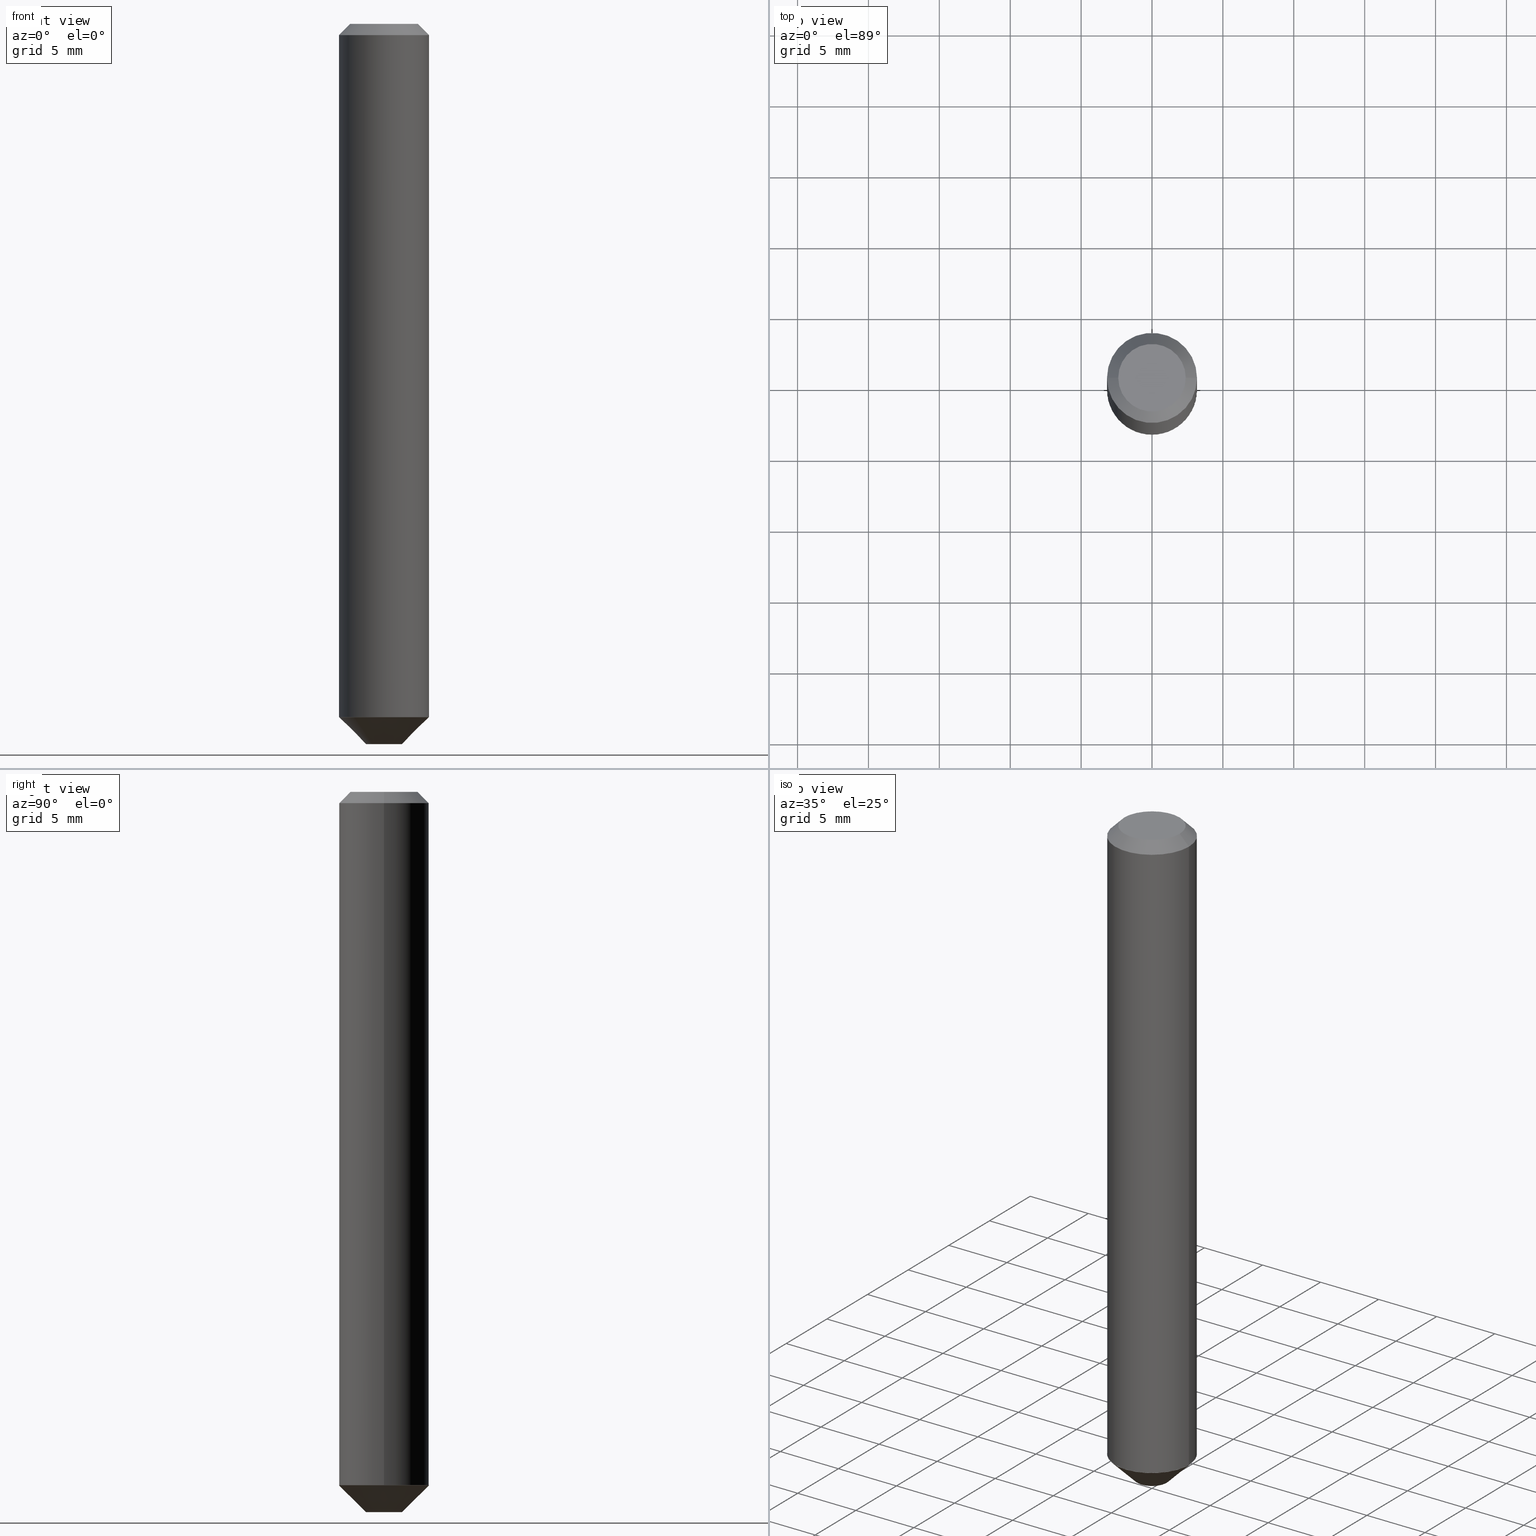
[diagram: canonical four-view strip — front | top / right | iso, engineering-drawing reading convention]
A machine part, canonical four-view strip (front | top / right | iso — engineering-drawing reading convention). The complete STEP part file that produces these views, byte-faithful:
ISO-10303-21;
HEADER;
FILE_DESCRIPTION (( 'STEP AP203' ),
    '1' );
FILE_NAME ('74231.STEP',
    '2025-06-20T12:14:37',
    ( '' ),
    ( '' ),
    'SwSTEP 2.0',
    'SolidWorks 2024',
    '' );
FILE_SCHEMA (( 'CONFIG_CONTROL_DESIGN' ));
ENDSEC;

DATA;
#1 = EDGE_LOOP ( 'NONE', ( #317, #189, #384, #183 ) ) ;
#2 = EDGE_LOOP ( 'NONE', ( #297, #347 ) ) ;
#3 = ORIENTED_EDGE ( 'NONE', *, *, #272, .T. ) ;
#4 = LINE ( 'NONE', #76, #169 ) ;
#5 = APPROVAL_ROLE ( '' ) ;
#6 = DIRECTION ( 'NONE',  ( -6.982962677686265922E-15, -1.000000000000000000, 3.499856470251552244E-15 ) ) ;
#7 = DIRECTION ( 'NONE',  ( -0.7071067811866923458, 7.493145998870876386E-15, 0.7071067811864025776 ) ) ;
#8 = FACE_OUTER_BOUND ( 'NONE', #159, .T. ) ;
#9 = AXIS2_PLACEMENT_3D ( 'NONE', #256, #299, #188 ) ;
#10 = ORIENTED_EDGE ( 'NONE', *, *, #202, .F. ) ;
#11 = VERTEX_POINT ( 'NONE', #14 ) ;
#12 = APPROVAL_DATE_TIME ( #107, #357 ) ;
#13 = DIRECTION ( 'NONE',  ( -2.445468806185136597E-29, 3.491481338843145583E-15, 1.000000000000000000 ) ) ;
#14 = CARTESIAN_POINT ( 'NONE',  ( 0.1250000000000000000, -9.819791265496324395E-16, -0.03125000000000021511 ) ) ;
#15 = CALENDAR_DATE ( 2025, 20, 6 ) ;
#16 = VECTOR ( 'NONE', #103, 39.37007874015748143 ) ;
#17 = APPROVAL_PERSON_ORGANIZATION ( #34, #147, #5 ) ;
#18 = COORDINATED_UNIVERSAL_TIME_OFFSET ( 5, 0, .BEHIND. ) ;
#19 = CC_DESIGN_PERSON_AND_ORGANIZATION_ASSIGNMENT ( #214, #177, ( #58 ) ) ;
#20 = AXIS2_PLACEMENT_3D ( 'NONE', #172, #309, #207 ) ;
#21 = MECHANICAL_CONTEXT ( 'NONE', #144, 'mechanical' ) ;
#22 = APPROVAL_ROLE ( '' ) ;
#23 = ORIENTED_EDGE ( 'NONE', *, *, #272, .F. ) ;
#24 = AXIS2_PLACEMENT_3D ( 'NONE', #311, #406, #280 ) ;
#25 = SECURITY_CLASSIFICATION ( '', '', #336 ) ;
#26 = VERTEX_POINT ( 'NONE', #334 ) ;
#27 = ADVANCED_FACE ( 'NONE', ( #131 ), #184, .T. ) ;
#28 = ORIENTED_EDGE ( 'NONE', *, *, #301, .F. ) ;
#29 = CYLINDRICAL_SURFACE ( 'NONE', #38, 0.1250000000000001110 ) ;
#30 = AXIS2_PLACEMENT_3D ( 'NONE', #273, #404, #370 ) ;
#31 = ORIENTED_EDGE ( 'NONE', *, *, #133, .T. ) ;
#32 = CARTESIAN_POINT ( 'NONE',  ( 0.1250000000000001110, -8.728703347107842263E-16, 6.095220969744926047E-30 ) ) ;
#33 = DIRECTION ( 'NONE',  ( -2.445468806185136597E-29, 3.491481338843145583E-15, 1.000000000000000000 ) ) ;
#34 = PERSON_AND_ORGANIZATION ( #210, #85 ) ;
#35 = DIRECTION ( 'NONE',  ( 6.982962677686266711E-15, 1.000000000000000000, -5.463695987328525648E-15 ) ) ;
#36 = DIRECTION ( 'NONE',  ( -2.445468806185136597E-29, 3.491481338843145583E-15, 1.000000000000000000 ) ) ;
#37 = PLANE ( 'NONE',  #154 ) ;
#38 = AXIS2_PLACEMENT_3D ( 'NONE', #197, #229, #40 ) ;
#39 = EDGE_LOOP ( 'NONE', ( #285, #153, #118, #379 ) ) ;
#40 = DIRECTION ( 'NONE',  ( 1.000000000000000000, -6.982962677686267499E-15, 4.876176775795936353E-29 ) ) ;
#41 = CARTESIAN_POINT ( 'NONE',  ( -0.1250000000000001110, 8.881784197001260212E-16, -6.148668862818637832E-30 ) ) ;
#42 = ORIENTED_EDGE ( 'NONE', *, *, #179, .F. ) ;
#43 = CARTESIAN_POINT ( 'NONE',  ( 8.728703347108306705E-16, 0.1249999999999933248, -1.925499999999999989 ) ) ;
#44 = EDGE_CURVE ( 'NONE', #416, #86, #46, .T. ) ;
#45 = CARTESIAN_POINT ( 'NONE',  ( -6.110092342975009069E-16, -0.05000000000000699718, -1.999999999999999778 ) ) ;
#46 = LINE ( 'NONE', #191, #374 ) ;
#47 = PERSON_AND_ORGANIZATION ( #210, #85 ) ;
#48 = VECTOR ( 'NONE', #156, 39.37007874015748143 ) ;
#49 = DIRECTION ( 'NONE',  ( 2.445468806185136597E-29, -3.491481338843145583E-15, -1.000000000000000000 ) ) ;
#50 = ADVANCED_FACE ( 'NONE', ( #100 ), #413, .T. ) ;
#51 = CLOSED_SHELL ( 'NONE', ( #88, #315, #27, #310, #141, #362, #251, #56 ) ) ;
#52 = AXIS2_PLACEMENT_3D ( 'NONE', #230, #260, #122 ) ;
#53 = LOCAL_TIME ( 8, 14, 37.00000000000000000, #269 ) ;
#54 = EDGE_CURVE ( 'NONE', #265, #62, #4, .T. ) ;
#55 =( NAMED_UNIT ( * ) PLANE_ANGLE_UNIT ( ) SI_UNIT ( $, .RADIAN. ) );
#56 = ADVANCED_FACE ( 'NONE', ( #70 ), #167, .F. ) ;
#57 = VERTEX_POINT ( 'NONE', #226 ) ;
#58 = PRODUCT ( '74231', '74231', '', ( #21 ) ) ;
#59 = CC_DESIGN_PERSON_AND_ORGANIZATION_ASSIGNMENT ( #201, #198, ( #171 ) ) ;
#60 = CIRCLE ( 'NONE', #186, 0.1250000000000002498 ) ;
#61 = PRODUCT_DEFINITION_SHAPE ( 'NONE', 'NONE',  #332 ) ;
#62 = VERTEX_POINT ( 'NONE', #228 ) ;
#63 = ORIENTED_EDGE ( 'NONE', *, *, #178, .T. ) ;
#64 = APPROVAL_STATUS ( 'not_yet_approved' ) ;
#65 = EDGE_LOOP ( 'NONE', ( #90, #383 ) ) ;
#66 = EDGE_CURVE ( 'NONE', #26, #213, #318, .T. ) ;
#67 = CARTESIAN_POINT ( 'NONE',  ( -0.1250000000000000000, 7.637615428719342382E-16, -0.03125000000000021511 ) ) ;
#68 = ORIENTED_EDGE ( 'NONE', *, *, #150, .T. ) ;
#69 = DIRECTION ( 'NONE',  ( 2.439620483180574528E-29, -3.499856470251552244E-15, -1.000000000000000000 ) ) ;
#70 = FACE_OUTER_BOUND ( 'NONE', #181, .T. ) ;
#71 = CARTESIAN_POINT ( 'NONE',  ( 8.881784197001733529E-16, 0.1249999999999934358, -1.925499999999999989 ) ) ;
#72 = DIRECTION ( 'NONE',  ( 1.000000000000000000, -6.982962677686266711E-15, 4.875989565238656407E-29 ) ) ;
#73 = APPROVAL_STATUS ( 'not_yet_approved' ) ;
#74 = CARTESIAN_POINT ( 'NONE',  ( 4.890937612370273194E-29, -6.982962677686291165E-15, -2.000000000000000000 ) ) ;
#75 = CIRCLE ( 'NONE', #30, 0.1244999999999999996 ) ;
#76 = CARTESIAN_POINT ( 'NONE',  ( -0.1250000000000002498, -5.831177416903507061E-15, -1.924499999999999877 ) ) ;
#77 = EDGE_CURVE ( 'NONE', #126, #11, #312, .T. ) ;
#78 = CARTESIAN_POINT ( 'NONE',  ( 7.642090019328604414E-31, -1.091087918388490513E-16, -0.03125000000000021511 ) ) ;
#79 = CARTESIAN_POINT ( 'NONE',  ( -8.575622497213960858E-16, -0.1250000000000070222, -1.925499999999998879 ) ) ;
#80 = DIRECTION ( 'NONE',  ( 6.982962677686265133E-15, 1.000000000000000000, -4.388510833195603583E-15 ) ) ;
#81 = DIRECTION ( 'NONE',  ( -1.000000000000000000, 6.982962677686265922E-15, -4.876176775795935793E-29 ) ) ;
#82 = EDGE_CURVE ( 'NONE', #182, #300, #403, .T. ) ;
#83 = AXIS2_PLACEMENT_3D ( 'NONE', #236, #411, #112 ) ;
#84 =( LENGTH_UNIT ( ) NAMED_UNIT ( * ) SI_UNIT ( $, .METRE. ) );
#85 = ORGANIZATION ( 'UNSPECIFIED', 'UNSPECIFIED', '' ) ;
#86 = VERTEX_POINT ( 'NONE', #79 ) ;
#87 = AXIS2_PLACEMENT_3D ( 'NONE', #292, #196, #393 ) ;
#88 = ADVANCED_FACE ( 'NONE', ( #109 ), #127, .T. ) ;
#89 = ORIENTED_EDGE ( 'NONE', *, *, #82, .F. ) ;
#90 = ORIENTED_EDGE ( 'NONE', *, *, #243, .F. ) ;
#91 = DESIGN_CONTEXT ( 'detailed design', #389, 'design' ) ;
#92 = DIRECTION ( 'NONE',  ( -2.445468806185136597E-29, 3.491481338843145583E-15, 1.000000000000000000 ) ) ;
#93 = ORIENTED_EDGE ( 'NONE', *, *, #203, .T. ) ;
#94 = AXIS2_PLACEMENT_3D ( 'NONE', #135, #386, #128 ) ;
#95 = LINE ( 'NONE', #304, #262 ) ;
#96 = ORIENTED_EDGE ( 'NONE', *, *, #329, .T. ) ;
#97 = DIRECTION ( 'NONE',  ( 2.438088387897960049E-29, -3.491481338843145188E-15, -1.000000000000000000 ) ) ;
#98 = DIRECTION ( 'NONE',  ( -6.982962677686265922E-15, -1.000000000000000000, 4.370956789862815627E-15 ) ) ;
#99 = LINE ( 'NONE', #41, #16 ) ;
#100 = FACE_OUTER_BOUND ( 'NONE', #353, .T. ) ;
#101 = CARTESIAN_POINT ( 'NONE',  ( 4.707527451906387725E-29, -6.721101577273055375E-15, -1.924999999999999822 ) ) ;
#102 = CLOSED_SHELL ( 'NONE', ( #50, #410, #348, #316, #224, #412 ) ) ;
#103 = DIRECTION ( 'NONE',  ( -2.445468806185136877E-29, 3.491481338843145188E-15, 1.000000000000000000 ) ) ;
#104 = AXIS2_PLACEMENT_3D ( 'NONE', #277, #49, #209 ) ;
#105 = CARTESIAN_POINT ( 'NONE',  ( 0.1250000000000002498, -7.592226171314417999E-15, -1.924499999999999877 ) ) ;
#106 = DIRECTION ( 'NONE',  ( 1.000000000000000000, -6.982962677686266711E-15, 4.875989565238656407E-29 ) ) ;
#107 = DATE_AND_TIME ( #15, #342 ) ;
#108 = DIRECTION ( 'NONE',  ( 2.439620483180574528E-29, -3.499856470251552244E-15, -1.000000000000000000 ) ) ;
#109 = FACE_OUTER_BOUND ( 'NONE', #39, .T. ) ;
#110 = CONICAL_SURFACE ( 'NONE', #170, 0.1250000000000000000, 0.7853981633974449483 ) ;
#111 = PLANE ( 'NONE',  #24 ) ;
#112 = DIRECTION ( 'NONE',  ( 1.000000000000000000, -6.982962677686265922E-15, 0.000000000000000000 ) ) ;
#113 = DATE_AND_TIME ( #283, #175 ) ;
#114 = ORIENTED_EDGE ( 'NONE', *, *, #338, .T. ) ;
#115 = VECTOR ( 'NONE', #295, 39.37007874015748143 ) ;
#116 = PERSON_AND_ORGANIZATION ( #210, #85 ) ;
#117 = ORIENTED_EDGE ( 'NONE', *, *, #77, .T. ) ;
#118 = ORIENTED_EDGE ( 'NONE', *, *, #160, .T. ) ;
#119 = ORIENTED_EDGE ( 'NONE', *, *, #185, .F. ) ;
#120 = AXIS2_PLACEMENT_3D ( 'NONE', #78, #13, #391 ) ;
#121 = ORIENTED_EDGE ( 'NONE', *, *, #321, .T. ) ;
#122 = DIRECTION ( 'NONE',  ( 6.982962677686265133E-15, 1.000000000000000000, -4.388510833195603583E-15 ) ) ;
#123 = VERTEX_POINT ( 'NONE', #279 ) ;
#124 = FACE_OUTER_BOUND ( 'NONE', #361, .T. ) ;
#125 = EDGE_CURVE ( 'NONE', #213, #11, #343, .T. ) ;
#126 = VERTEX_POINT ( 'NONE', #143 ) ;
#127 = CONICAL_SURFACE ( 'NONE', #104, 0.1250000000000000000, 0.7853981633974449483 ) ;
#128 = DIRECTION ( 'NONE',  ( 6.982962677686266711E-15, 1.000000000000000000, -5.463695987328525648E-15 ) ) ;
#129 = ORIENTED_EDGE ( 'NONE', *, *, #125, .F. ) ;
#130 = DIRECTION ( 'NONE',  ( 5.041071339380618212E-15, 0.7094677189244624760, 0.7047379341316314383 ) ) ;
#131 = FACE_OUTER_BOUND ( 'NONE', #399, .T. ) ;
#132 = DIRECTION ( 'NONE',  ( 6.982962677686265922E-15, 1.000000000000000000, -4.370956789862815627E-15 ) ) ;
#133 = EDGE_CURVE ( 'NONE', #26, #126, #302, .T. ) ;
#134 = PERSON_AND_ORGANIZATION ( #210, #85 ) ;
#135 = CARTESIAN_POINT ( 'NONE',  ( 4.890498988144930849E-29, -6.983590812541921448E-15, -2.000000000000000000 ) ) ;
#136 = ORIENTED_EDGE ( 'NONE', *, *, #258, .F. ) ;
#137 = DIRECTION ( 'NONE',  ( -4.954186602272732689E-15, -0.7094677189244577020, 0.7047379341316364343 ) ) ;
#138 = VECTOR ( 'NONE', #339, 39.37007874015748143 ) ;
#139 = CARTESIAN_POINT ( 'NONE',  ( 0.1250000000000000000, -9.666710415602905459E-16, -0.03125000000000021511 ) ) ;
#140 = DIRECTION ( 'NONE',  ( 6.982962677686265133E-15, 1.000000000000000000, -4.388510833195603583E-15 ) ) ;
#141 = ADVANCED_FACE ( 'NONE', ( #8 ), #284, .T. ) ;
#142 = SHAPE_DEFINITION_REPRESENTATION ( #61, #323 ) ;
#143 = CARTESIAN_POINT ( 'NONE',  ( -0.1250000000000000000, -2.526053894521113887E-15, -0.03125000000000021511 ) ) ;
#144 = APPLICATION_CONTEXT ( 'configuration controlled 3d designs of mechanical parts and assemblies' ) ;
#145 = FACE_OUTER_BOUND ( 'NONE', #2, .T. ) ;
#146 =( GEOMETRIC_REPRESENTATION_CONTEXT ( 3 ) GLOBAL_UNCERTAINTY_ASSIGNED_CONTEXT ( ( #288 ) ) GLOBAL_UNIT_ASSIGNED_CONTEXT ( ( #282, #55, #219 ) ) REPRESENTATION_CONTEXT ( 'NONE', 'WORKASPACE' ) );
#147 = APPROVAL ( #64, 'UNSPECIFIED' ) ;
#148 = CALENDAR_DATE ( 2025, 20, 6 ) ;
#149 = ORIENTED_EDGE ( 'NONE', *, *, #301, .T. ) ;
#150 = EDGE_CURVE ( 'NONE', #416, #57, #205, .T. ) ;
#151 = VECTOR ( 'NONE', #233, 39.37007874015748854 ) ;
#152 = CC_DESIGN_APPROVAL ( #147, ( #332 ) ) ;
#153 = ORIENTED_EDGE ( 'NONE', *, *, #125, .T. ) ;
#154 = AXIS2_PLACEMENT_3D ( 'NONE', #74, #267, #6 ) ;
#155 = CARTESIAN_POINT ( 'NONE',  ( 4.708747262147976865E-29, -6.722851505508178377E-15, -1.925499999999999545 ) ) ;
#156 = DIRECTION ( 'NONE',  ( -0.7071067811865451302, 2.468850131082231817E-15, -0.7071067811865499042 ) ) ;
#157 = ORIENTED_EDGE ( 'NONE', *, *, #66, .T. ) ;
#158 = DIRECTION ( 'NONE',  ( 1.000000000000000000, -6.982962677686264344E-15, 0.000000000000000000 ) ) ;
#159 = EDGE_LOOP ( 'NONE', ( #193, #121, #218, #136 ) ) ;
#160 = EDGE_CURVE ( 'NONE', #11, #126, #180, .T. ) ;
#161 = CIRCLE ( 'NONE', #83, 0.1245000000000001383 ) ;
#162 = PERSON_AND_ORGANIZATION_ROLE ( 'classification_officer' ) ;
#163 = DIRECTION ( 'NONE',  ( -2.445468806185136597E-29, 3.491481338843145583E-15, 1.000000000000000000 ) ) ;
#164 = EDGE_LOOP ( 'NONE', ( #351, #68, #381, #322 ) ) ;
#165 = DATE_AND_TIME ( #308, #53 ) ;
#166 = CARTESIAN_POINT ( 'NONE',  ( 4.707527451906387725E-29, -6.721101577273055375E-15, -1.924999999999999822 ) ) ;
#167 = PLANE ( 'NONE',  #87 ) ;
#168 = CARTESIAN_POINT ( 'NONE',  ( 4.706304717503294923E-29, -6.719355836603633871E-15, -1.924499999999999877 ) ) ;
#169 = VECTOR ( 'NONE', #7, 39.37007874015748854 ) ;
#170 = AXIS2_PLACEMENT_3D ( 'NONE', #199, #195, #396 ) ;
#171 = PRODUCT_DEFINITION_FORMATION_WITH_SPECIFIED_SOURCE ( 'ANY', '', #58, .NOT_KNOWN. ) ;
#172 = CARTESIAN_POINT ( 'NONE',  ( 0.000000000000000000, 0.000000000000000000, 0.000000000000000000 ) ) ;
#173 = PRODUCT_RELATED_PRODUCT_CATEGORY ( 'detail', '', ( #58 ) ) ;
#174 = AXIS2_PLACEMENT_3D ( 'NONE', #398, #320, #190 ) ;
#175 = LOCAL_TIME ( 8, 14, 37.00000000000000000, #415 ) ;
#176 = FACE_OUTER_BOUND ( 'NONE', #358, .T. ) ;
#177 = PERSON_AND_ORGANIZATION_ROLE ( 'design_owner' ) ;
#178 = EDGE_CURVE ( 'NONE', #397, #86, #366, .T. ) ;
#179 = EDGE_CURVE ( 'NONE', #123, #397, #360, .T. ) ;
#180 = CIRCLE ( 'NONE', #120, 0.1250000000000000000 ) ;
#181 = EDGE_LOOP ( 'NONE', ( #157, #114 ) ) ;
#182 = VERTEX_POINT ( 'NONE', #293 ) ;
#183 = ORIENTED_EDGE ( 'NONE', *, *, #287, .F. ) ;
#184 = CONICAL_SURFACE ( 'NONE', #349, 0.1250000000000002498, 0.7853981633976532262 ) ;
#185 = EDGE_CURVE ( 'NONE', #123, #246, #290, .T. ) ;
#186 = AXIS2_PLACEMENT_3D ( 'NONE', #402, #92, #327 ) ;
#187 = DIRECTION ( 'NONE',  ( 0.000000000000000000, 0.000000000000000000, 1.000000000000000000 ) ) ;
#188 = DIRECTION ( 'NONE',  ( 6.982962677686265922E-15, 1.000000000000000000, -4.370956789862815627E-15 ) ) ;
#189 = ORIENTED_EDGE ( 'NONE', *, *, #44, .T. ) ;
#190 = DIRECTION ( 'NONE',  ( 1.000000000000000000, -6.982962677686265922E-15, 0.000000000000000000 ) ) ;
#191 = CARTESIAN_POINT ( 'NONE',  ( -8.541320007225085048E-16, -0.1245000000000067303, -1.924999999999999378 ) ) ;
#192 = CARTESIAN_POINT ( 'NONE',  ( 0.09374999999999998612, -8.049213644256857164E-16, 3.827021247340580176E-18 ) ) ;
#193 = ORIENTED_EDGE ( 'NONE', *, *, #54, .F. ) ;
#194 = CONICAL_SURFACE ( 'NONE', #274, 0.1244999999999999996, 0.7853981633979947308 ) ;
#195 = DIRECTION ( 'NONE',  ( 2.445468806185136597E-29, -3.491481338843145583E-15, -1.000000000000000000 ) ) ;
#196 = DIRECTION ( 'NONE',  ( 2.438088387897960049E-29, -3.491481338843145188E-15, -1.000000000000000000 ) ) ;
#197 = CARTESIAN_POINT ( 'NONE',  ( 0.000000000000000000, 0.000000000000000000, 0.000000000000000000 ) ) ;
#198 = PERSON_AND_ORGANIZATION_ROLE ( 'creator' ) ;
#199 = CARTESIAN_POINT ( 'NONE',  ( 7.642090019328604414E-31, -1.091087918388490513E-16, -0.03125000000000021511 ) ) ;
#200 = ORIENTED_EDGE ( 'NONE', *, *, #202, .T. ) ;
#201 = PERSON_AND_ORGANIZATION ( #210, #85 ) ;
#202 = EDGE_CURVE ( 'NONE', #300, #62, #60, .T. ) ;
#203 = EDGE_CURVE ( 'NONE', #246, #123, #394, .T. ) ;
#204 = CALENDAR_DATE ( 2025, 20, 6 ) ;
#205 = CIRCLE ( 'NONE', #52, 0.1244999999999999996 ) ;
#206 = LOCAL_TIME ( 8, 14, 37.00000000000000000, #395 ) ;
#207 = DIRECTION ( 'NONE',  ( 1.000000000000000000, -6.982962677686267499E-15, 4.876176775795936353E-29 ) ) ;
#208 = CARTESIAN_POINT ( 'NONE',  ( -8.728703347107373877E-16, -0.1250000000000068834, -1.925499999999998879 ) ) ;
#209 = DIRECTION ( 'NONE',  ( -1.000000000000000000, 6.982962677686266711E-15, 0.000000000000000000 ) ) ;
#210 = PERSON ( 'UNSPECIFIED', 'UNSPECIFIED', 'UNSPECIFIED', ('UNSPECIFIED'), ('UNSPECIFIED'), ('UNSPECIFIED') ) ;
#211 = AXIS2_PLACEMENT_3D ( 'NONE', #234, #337, #106 ) ;
#212 = APPROVAL_PERSON_ORGANIZATION ( #244, #357, #22 ) ;
#213 = VERTEX_POINT ( 'NONE', #192 ) ;
#214 = PERSON_AND_ORGANIZATION ( #210, #85 ) ;
#215 = ORIENTED_EDGE ( 'NONE', *, *, #179, .T. ) ;
#216 = APPROVAL ( #73, 'UNSPECIFIED' ) ;
#217 = AXIS2_PLACEMENT_3D ( 'NONE', #155, #291, #132 ) ;
#218 = ORIENTED_EDGE ( 'NONE', *, *, #82, .T. ) ;
#219 =( NAMED_UNIT ( * ) SI_UNIT ( $, .STERADIAN. ) SOLID_ANGLE_UNIT ( ) );
#220 = CARTESIAN_POINT ( 'NONE',  ( -0.1245000000000001383, -5.833826644077618262E-15, -1.924999999999999822 ) ) ;
#221 = EDGE_LOOP ( 'NONE', ( #93, #388 ) ) ;
#222 = CC_DESIGN_APPROVAL ( #357, ( #171 ) ) ;
#223 = APPLICATION_PROTOCOL_DEFINITION ( 'international standard', 'config_control_design', 1994, #389 ) ;
#224 = ADVANCED_FACE ( 'NONE', ( #227 ), #37, .F. ) ;
#225 = FACE_OUTER_BOUND ( 'NONE', #65, .T. ) ;
#226 = CARTESIAN_POINT ( 'NONE',  ( 8.693788533719871703E-16, 0.1244999999999932688, -1.925000000000000266 ) ) ;
#227 = FACE_OUTER_BOUND ( 'NONE', #221, .T. ) ;
#228 = CARTESIAN_POINT ( 'NONE',  ( -0.1250000000000002498, -5.831177416903507061E-15, -1.924499999999999877 ) ) ;
#229 = DIRECTION ( 'NONE',  ( -2.445468806185136597E-29, 3.491481338843145583E-15, 1.000000000000000000 ) ) ;
#230 = CARTESIAN_POINT ( 'NONE',  ( 4.707527451906387725E-29, -6.721101577273055375E-15, -1.924999999999999822 ) ) ;
#231 = CARTESIAN_POINT ( 'NONE',  ( 4.708747262147976865E-29, -6.722851505508178377E-15, -1.925499999999999545 ) ) ;
#232 = CIRCLE ( 'NONE', #174, 0.1245000000000001383 ) ;
#233 = DIRECTION ( 'NONE',  ( 0.7071067811866923458, -2.468850131083773646E-15, 0.7071067811864025776 ) ) ;
#234 = CARTESIAN_POINT ( 'NONE',  ( -9.358861080966640236E-47, 1.336197326842803670E-32, 3.827021247335477232E-18 ) ) ;
#235 = FACE_OUTER_BOUND ( 'NONE', #1, .T. ) ;
#236 = CARTESIAN_POINT ( 'NONE',  ( 4.707527451906387725E-29, -6.721101577273055375E-15, -1.924999999999999822 ) ) ;
#237 = MANIFOLD_SOLID_BREP ( 'Body-Move/Copy2[1]', #102 ) ;
#238 = VECTOR ( 'NONE', #130, 39.37007874015748854 ) ;
#239 = LOCAL_TIME ( 8, 14, 37.00000000000000000, #18 ) ;
#240 = CARTESIAN_POINT ( 'NONE',  ( -8.558471252219518516E-16, -0.1245000000000067303, -1.924999999999999378 ) ) ;
#241 = LINE ( 'NONE', #208, #253 ) ;
#242 = LENGTH_MEASURE_WITH_UNIT ( LENGTH_MEASURE( 0.02539999999999999897 ), #84 );
#243 = EDGE_CURVE ( 'NONE', #182, #265, #232, .T. ) ;
#244 = PERSON_AND_ORGANIZATION ( #210, #85 ) ;
#245 = CONICAL_SURFACE ( 'NONE', #356, 0.1244999999999999996, 0.7853981633979947308 ) ;
#246 = VERTEX_POINT ( 'NONE', #45 ) ;
#247 = APPROVAL_DATE_TIME ( #113, #147 ) ;
#248 = ORIENTED_EDGE ( 'NONE', *, *, #258, .T. ) ;
#249 = CC_DESIGN_PERSON_AND_ORGANIZATION_ASSIGNMENT ( #47, #162, ( #25 ) ) ;
#250 = ORIENTED_EDGE ( 'NONE', *, *, #160, .F. ) ;
#251 = ADVANCED_FACE ( 'NONE', ( #124 ), #110, .T. ) ;
#252 = ORIENTED_EDGE ( 'NONE', *, *, #243, .T. ) ;
#253 = VECTOR ( 'NONE', #137, 39.37007874015748143 ) ;
#254 = AXIS2_PLACEMENT_3D ( 'NONE', #344, #187, #319 ) ;
#255 = DIMENSIONAL_EXPONENTS ( 1.000000000000000000, 0.000000000000000000, 0.000000000000000000, 0.000000000000000000, 0.000000000000000000, 0.000000000000000000, 0.000000000000000000 ) ;
#256 = CARTESIAN_POINT ( 'NONE',  ( 4.708747262147976865E-29, -6.722851505508178377E-15, -1.925499999999999545 ) ) ;
#257 = EDGE_LOOP ( 'NONE', ( #28, #248, #3, #286 ) ) ;
#258 = EDGE_CURVE ( 'NONE', #62, #300, #392, .T. ) ;
#259 = PERSON_AND_ORGANIZATION_ROLE ( 'creator' ) ;
#260 = DIRECTION ( 'NONE',  ( 2.439620483180574528E-29, -3.499856470251552244E-15, -1.000000000000000000 ) ) ;
#261 = DIRECTION ( 'NONE',  ( 1.000000000000000000, -6.982962677686264344E-15, 0.000000000000000000 ) ) ;
#262 = VECTOR ( 'NONE', #330, 39.37007874015748143 ) ;
#263 = APPROVAL_PERSON_ORGANIZATION ( #306, #216, #276 ) ;
#264 = PLANE ( 'NONE',  #350 ) ;
#265 = VERTEX_POINT ( 'NONE', #220 ) ;
#266 = DATE_AND_TIME ( #204, #239 ) ;
#267 = DIRECTION ( 'NONE',  ( -2.439620483180573967E-29, 3.499856470251552244E-15, 1.000000000000000000 ) ) ;
#268 = DIRECTION ( 'NONE',  ( -4.851104656543614848E-15, -0.7071067811869363728, -0.7071067811861586616 ) ) ;
#269 = COORDINATED_UNIVERSAL_TIME_OFFSET ( 5, 0, .BEHIND. ) ;
#270 = DIRECTION ( 'NONE',  ( 1.000000000000000000, -6.982962677686264344E-15, 0.000000000000000000 ) ) ;
#271 = ORIENTED_EDGE ( 'NONE', *, *, #203, .F. ) ;
#272 = EDGE_CURVE ( 'NONE', #300, #11, #333, .T. ) ;
#273 = CARTESIAN_POINT ( 'NONE',  ( 4.707527451906387725E-29, -6.721101577273055375E-15, -1.924999999999999822 ) ) ;
#274 = AXIS2_PLACEMENT_3D ( 'NONE', #335, #108, #140 ) ;
#275 = FACE_OUTER_BOUND ( 'NONE', #257, .T. ) ;
#276 = APPROVAL_ROLE ( '' ) ;
#277 = CARTESIAN_POINT ( 'NONE',  ( 7.642090019328604414E-31, -1.091087918388490513E-16, -0.03125000000000021511 ) ) ;
#278 = DIRECTION ( 'NONE',  ( -6.982962677686265922E-15, -1.000000000000000000, 4.370956789862815627E-15 ) ) ;
#279 = CARTESIAN_POINT ( 'NONE',  ( 6.217248937901361381E-16, 0.04999999999999302919, -2.000000000000000444 ) ) ;
#280 = DIRECTION ( 'NONE',  ( -6.982962677686265922E-15, -1.000000000000000000, 3.499856470251552244E-15 ) ) ;
#281 = DATE_TIME_ROLE ( 'creation_date' ) ;
#282 =( CONVERSION_BASED_UNIT ( 'INCH', #242 ) LENGTH_UNIT ( ) NAMED_UNIT ( #255 ) );
#283 = CALENDAR_DATE ( 2025, 20, 6 ) ;
#284 = CONICAL_SURFACE ( 'NONE', #341, 0.1250000000000002498, 0.7853981633976532262 ) ;
#285 = ORIENTED_EDGE ( 'NONE', *, *, #338, .F. ) ;
#286 = ORIENTED_EDGE ( 'NONE', *, *, #77, .F. ) ;
#287 = EDGE_CURVE ( 'NONE', #57, #397, #95, .T. ) ;
#288 = UNCERTAINTY_MEASURE_WITH_UNIT (LENGTH_MEASURE( 1.000000000000000082E-05 ), #282, 'distance_accuracy_value', 'NONE');
#289 = ORIENTED_EDGE ( 'NONE', *, *, #66, .F. ) ;
#290 = CIRCLE ( 'NONE', #94, 0.05000000000000000971 ) ;
#291 = DIRECTION ( 'NONE',  ( 2.439620483180574528E-29, -3.499856470251552244E-15, -1.000000000000000000 ) ) ;
#292 = CARTESIAN_POINT ( 'NONE',  ( -4.679430540483320118E-47, 6.680986634214018350E-33, 1.913510623667738616E-18 ) ) ;
#293 = CARTESIAN_POINT ( 'NONE',  ( 0.1245000000000001383, -7.590480430644995706E-15, -1.924999999999999822 ) ) ;
#294 = CARTESIAN_POINT ( 'NONE',  ( 4.706304717503294923E-29, -6.719355836603633871E-15, -1.924499999999999877 ) ) ;
#295 = DIRECTION ( 'NONE',  ( -2.445468806185136877E-29, 3.491481338843145188E-15, 1.000000000000000000 ) ) ;
#296 = CC_DESIGN_DATE_AND_TIME_ASSIGNMENT ( #346, #281, ( #332 ) ) ;
#297 = ORIENTED_EDGE ( 'NONE', *, *, #407, .F. ) ;
#298 = AXIS2_PLACEMENT_3D ( 'NONE', #364, #69, #35 ) ;
#299 = DIRECTION ( 'NONE',  ( 2.439620483180574528E-29, -3.499856470251552244E-15, -1.000000000000000000 ) ) ;
#300 = VERTEX_POINT ( 'NONE', #354 ) ;
#301 = EDGE_CURVE ( 'NONE', #62, #126, #99, .T. ) ;
#302 = LINE ( 'NONE', #67, #48 ) ;
#303 = DIRECTION ( 'NONE',  ( 1.000000000000000000, -6.982962677686266711E-15, 0.000000000000000000 ) ) ;
#304 = CARTESIAN_POINT ( 'NONE',  ( 8.693788533719871703E-16, 0.1244999999999932688, -1.925000000000000266 ) ) ;
#305 = AXIS2_PLACEMENT_3D ( 'NONE', #409, #345, #278 ) ;
#306 = PERSON_AND_ORGANIZATION ( #210, #85 ) ;
#307 = CYLINDRICAL_SURFACE ( 'NONE', #20, 0.1250000000000001110 ) ;
#308 = CALENDAR_DATE ( 2025, 20, 6 ) ;
#309 = DIRECTION ( 'NONE',  ( -2.445468806185136597E-29, 3.491481338843145583E-15, 1.000000000000000000 ) ) ;
#310 = ADVANCED_FACE ( 'NONE', ( #225 ), #264, .T. ) ;
#311 = CARTESIAN_POINT ( 'NONE',  ( 4.707527451906387725E-29, -6.721101577273055375E-15, -1.924999999999999822 ) ) ;
#312 = CIRCLE ( 'NONE', #340, 0.1250000000000000000 ) ;
#313 = CIRCLE ( 'NONE', #211, 0.09374999999999998612 ) ;
#314 = ORIENTED_EDGE ( 'NONE', *, *, #385, .T. ) ;
#315 = ADVANCED_FACE ( 'NONE', ( #176 ), #307, .T. ) ;
#316 = ADVANCED_FACE ( 'NONE', ( #145 ), #111, .T. ) ;
#317 = ORIENTED_EDGE ( 'NONE', *, *, #407, .T. ) ;
#318 = CIRCLE ( 'NONE', #375, 0.09374999999999998612 ) ;
#319 = DIRECTION ( 'NONE',  ( 1.000000000000000000, 0.000000000000000000, 0.000000000000000000 ) ) ;
#320 = DIRECTION ( 'NONE',  ( -2.445468806185136597E-29, 3.491481338843145583E-15, 1.000000000000000000 ) ) ;
#321 = EDGE_CURVE ( 'NONE', #265, #182, #161, .T. ) ;
#322 = ORIENTED_EDGE ( 'NONE', *, *, #385, .F. ) ;
#323 = ADVANCED_BREP_SHAPE_REPRESENTATION ( '74231', ( #237, #380, #254 ), #146 ) ;
#324 = CC_DESIGN_PERSON_AND_ORGANIZATION_ASSIGNMENT ( #134, #408, ( #171 ) ) ;
#325 = DIRECTION ( 'NONE',  ( -2.445468806185136597E-29, 3.491481338843145583E-15, 1.000000000000000000 ) ) ;
#326 = CARTESIAN_POINT ( 'NONE',  ( -9.358861080966640236E-47, 1.336197326842803670E-32, 3.827021247335477232E-18 ) ) ;
#327 = DIRECTION ( 'NONE',  ( 1.000000000000000000, -6.982962677686264344E-15, 0.000000000000000000 ) ) ;
#328 = DIRECTION ( 'NONE',  ( -2.445468806185136597E-29, 3.491481338843145583E-15, 1.000000000000000000 ) ) ;
#329 = EDGE_CURVE ( 'NONE', #246, #86, #241, .T. ) ;
#330 = DIRECTION ( 'NONE',  ( 4.937700262167245946E-15, 0.7071067811869314879, -0.7071067811861635466 ) ) ;
#331 = CARTESIAN_POINT ( 'NONE',  ( 7.642090019328604414E-31, -1.091087918388490513E-16, -0.03125000000000021511 ) ) ;
#332 = PRODUCT_DEFINITION ( 'UNKNOWN', '', #171, #91 ) ;
#333 = LINE ( 'NONE', #32, #115 ) ;
#334 = CARTESIAN_POINT ( 'NONE',  ( -0.09374999999999998612, 7.092071469525108711E-16, 3.827021247330707859E-18 ) ) ;
#335 = CARTESIAN_POINT ( 'NONE',  ( 4.707527451906387725E-29, -6.721101577273055375E-15, -1.924999999999999822 ) ) ;
#336 = SECURITY_CLASSIFICATION_LEVEL ( 'unclassified' ) ;
#337 = DIRECTION ( 'NONE',  ( -2.445468806185136597E-29, 3.491481338843145583E-15, 1.000000000000000000 ) ) ;
#338 = EDGE_CURVE ( 'NONE', #213, #26, #313, .T. ) ;
#339 = DIRECTION ( 'NONE',  ( 0.7071067811865451302, -7.319954787623248157E-15, -0.7071067811865499042 ) ) ;
#340 = AXIS2_PLACEMENT_3D ( 'NONE', #331, #328, #303 ) ;
#341 = AXIS2_PLACEMENT_3D ( 'NONE', #368, #163, #270 ) ;
#342 = LOCAL_TIME ( 8, 14, 37.00000000000000000, #378 ) ;
#343 = LINE ( 'NONE', #139, #138 ) ;
#344 = CARTESIAN_POINT ( 'NONE',  ( 0.000000000000000000, 0.000000000000000000, 0.000000000000000000 ) ) ;
#345 = DIRECTION ( 'NONE',  ( -2.439620483180574528E-29, 3.499856470251552244E-15, 1.000000000000000000 ) ) ;
#346 = DATE_AND_TIME ( #148, #206 ) ;
#347 = ORIENTED_EDGE ( 'NONE', *, *, #150, .F. ) ;
#348 = ADVANCED_FACE ( 'NONE', ( #400 ), #245, .T. ) ;
#349 = AXIS2_PLACEMENT_3D ( 'NONE', #294, #33, #261 ) ;
#350 = AXIS2_PLACEMENT_3D ( 'NONE', #166, #97, #81 ) ;
#351 = ORIENTED_EDGE ( 'NONE', *, *, #44, .F. ) ;
#352 = CC_DESIGN_DATE_AND_TIME_ASSIGNMENT ( #165, #401, ( #25 ) ) ;
#353 = EDGE_LOOP ( 'NONE', ( #119, #215, #63, #377 ) ) ;
#354 = CARTESIAN_POINT ( 'NONE',  ( 0.1250000000000002498, -7.592226171314417999E-15, -1.924499999999999877 ) ) ;
#355 = EDGE_LOOP ( 'NONE', ( #42, #271, #96, #314 ) ) ;
#356 = AXIS2_PLACEMENT_3D ( 'NONE', #101, #363, #80 ) ;
#357 = APPROVAL ( #376, 'UNSPECIFIED' ) ;
#358 = EDGE_LOOP ( 'NONE', ( #200, #149, #250, #23 ) ) ;
#359 = APPROVAL_DATE_TIME ( #266, #216 ) ;
#360 = LINE ( 'NONE', #71, #238 ) ;
#361 = EDGE_LOOP ( 'NONE', ( #129, #289, #31, #117 ) ) ;
#362 = ADVANCED_FACE ( 'NONE', ( #275 ), #29, .T. ) ;
#363 = DIRECTION ( 'NONE',  ( 2.439620483180574528E-29, -3.499856470251552244E-15, -1.000000000000000000 ) ) ;
#364 = CARTESIAN_POINT ( 'NONE',  ( 4.890498988144930849E-29, -6.983590812541921448E-15, -2.000000000000000000 ) ) ;
#365 = DIRECTION ( 'NONE',  ( -2.439620483180574528E-29, 3.499856470251552244E-15, 1.000000000000000000 ) ) ;
#366 = CIRCLE ( 'NONE', #9, 0.1250000000000001665 ) ;
#367 = CC_DESIGN_APPROVAL ( #216, ( #25 ) ) ;
#368 = CARTESIAN_POINT ( 'NONE',  ( 4.706304717503294923E-29, -6.719355836603633871E-15, -1.924499999999999877 ) ) ;
#369 = ORIENTED_EDGE ( 'NONE', *, *, #54, .T. ) ;
#370 = DIRECTION ( 'NONE',  ( 6.982962677686265133E-15, 1.000000000000000000, -4.388510833195603583E-15 ) ) ;
#371 = FACE_OUTER_BOUND ( 'NONE', #355, .T. ) ;
#372 = AXIS2_PLACEMENT_3D ( 'NONE', #231, #365, #98 ) ;
#373 = CC_DESIGN_SECURITY_CLASSIFICATION ( #25, ( #171 ) ) ;
#374 = VECTOR ( 'NONE', #268, 39.37007874015748143 ) ;
#375 = AXIS2_PLACEMENT_3D ( 'NONE', #326, #36, #72 ) ;
#376 = APPROVAL_STATUS ( 'not_yet_approved' ) ;
#377 = ORIENTED_EDGE ( 'NONE', *, *, #329, .F. ) ;
#378 = COORDINATED_UNIVERSAL_TIME_OFFSET ( 5, 0, .BEHIND. ) ;
#379 = ORIENTED_EDGE ( 'NONE', *, *, #133, .F. ) ;
#380 = MANIFOLD_SOLID_BREP ( 'Body-Move/Copy2[2]', #51 ) ;
#381 = ORIENTED_EDGE ( 'NONE', *, *, #287, .T. ) ;
#382 = CONICAL_SURFACE ( 'NONE', #305, 0.1250000000000001665, 0.7887426325329172094 ) ;
#383 = ORIENTED_EDGE ( 'NONE', *, *, #321, .F. ) ;
#384 = ORIENTED_EDGE ( 'NONE', *, *, #178, .F. ) ;
#385 = EDGE_CURVE ( 'NONE', #86, #397, #405, .T. ) ;
#386 = DIRECTION ( 'NONE',  ( 2.439620483180574528E-29, -3.499856470251552244E-15, -1.000000000000000000 ) ) ;
#387 = CC_DESIGN_PERSON_AND_ORGANIZATION_ASSIGNMENT ( #116, #259, ( #332 ) ) ;
#388 = ORIENTED_EDGE ( 'NONE', *, *, #185, .T. ) ;
#389 = APPLICATION_CONTEXT ( 'configuration controlled 3d designs of mechanical parts and assemblies' ) ;
#390 = APPLICATION_PROTOCOL_DEFINITION ( 'international standard', 'config_control_design', 1994, #144 ) ;
#391 = DIRECTION ( 'NONE',  ( 1.000000000000000000, -6.982962677686266711E-15, 0.000000000000000000 ) ) ;
#392 = CIRCLE ( 'NONE', #414, 0.1250000000000002498 ) ;
#393 = DIRECTION ( 'NONE',  ( -1.000000000000000000, 6.982962677686265922E-15, -4.876176775795935793E-29 ) ) ;
#394 = CIRCLE ( 'NONE', #298, 0.05000000000000000971 ) ;
#395 = COORDINATED_UNIVERSAL_TIME_OFFSET ( 5, 0, .BEHIND. ) ;
#396 = DIRECTION ( 'NONE',  ( -1.000000000000000000, 6.982962677686266711E-15, 0.000000000000000000 ) ) ;
#397 = VERTEX_POINT ( 'NONE', #43 ) ;
#398 = CARTESIAN_POINT ( 'NONE',  ( 4.707527451906387725E-29, -6.721101577273055375E-15, -1.924999999999999822 ) ) ;
#399 = EDGE_LOOP ( 'NONE', ( #252, #369, #10, #89 ) ) ;
#400 = FACE_OUTER_BOUND ( 'NONE', #164, .T. ) ;
#401 = DATE_TIME_ROLE ( 'classification_date' ) ;
#402 = CARTESIAN_POINT ( 'NONE',  ( 4.706304717503294923E-29, -6.719355836603633871E-15, -1.924499999999999877 ) ) ;
#403 = LINE ( 'NONE', #105, #151 ) ;
#404 = DIRECTION ( 'NONE',  ( 2.439620483180574528E-29, -3.499856470251552244E-15, -1.000000000000000000 ) ) ;
#405 = CIRCLE ( 'NONE', #217, 0.1250000000000001665 ) ;
#406 = DIRECTION ( 'NONE',  ( -2.439620483180573967E-29, 3.499856470251552244E-15, 1.000000000000000000 ) ) ;
#407 = EDGE_CURVE ( 'NONE', #57, #416, #75, .T. ) ;
#408 = PERSON_AND_ORGANIZATION_ROLE ( 'design_supplier' ) ;
#409 = CARTESIAN_POINT ( 'NONE',  ( 4.708747262147976865E-29, -6.722851505508178377E-15, -1.925499999999999545 ) ) ;
#410 = ADVANCED_FACE ( 'NONE', ( #235 ), #194, .T. ) ;
#411 = DIRECTION ( 'NONE',  ( -2.445468806185136597E-29, 3.491481338843145583E-15, 1.000000000000000000 ) ) ;
#412 = ADVANCED_FACE ( 'NONE', ( #371 ), #382, .T. ) ;
#413 = CONICAL_SURFACE ( 'NONE', #372, 0.1250000000000001665, 0.7887426325329172094 ) ;
#414 = AXIS2_PLACEMENT_3D ( 'NONE', #168, #325, #158 ) ;
#415 = COORDINATED_UNIVERSAL_TIME_OFFSET ( 5, 0, .BEHIND. ) ;
#416 = VERTEX_POINT ( 'NONE', #240 ) ;
ENDSEC;
END-ISO-10303-21;
